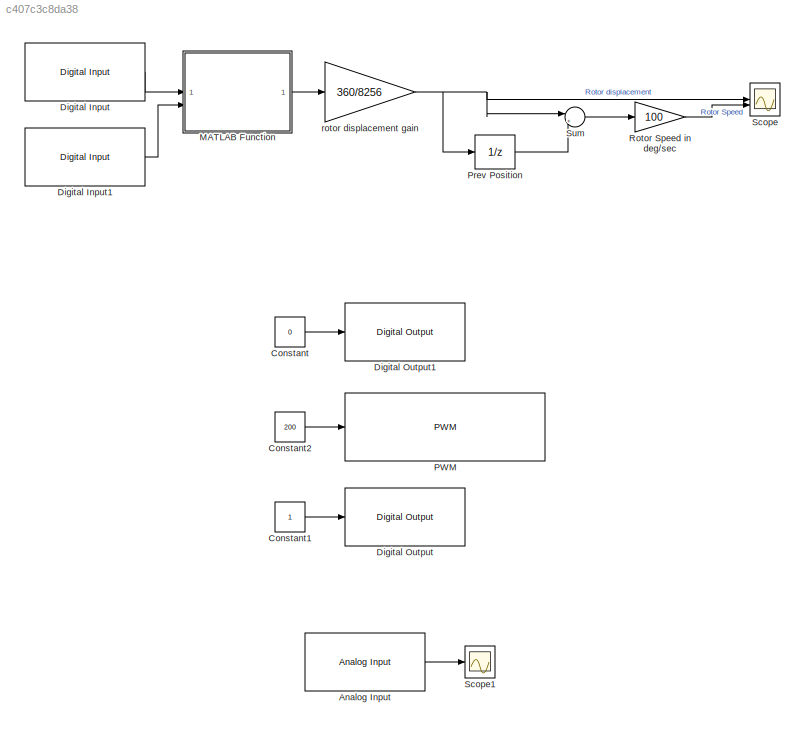
MODEL slx_c407c3c8da38
KIND model
CONFIG AbsTol = auto
CONFIG EnableMultiTasking = on
CONFIG FixedStep = auto
CONFIG MaxStep = auto
CONFIG MinStep = auto
CONFIG RelTol = 1e-3
CONFIG SampleTimeConstraint = Unconstrained
CONFIG SolverName = ode45
CONFIG StartTime = 0.0
CONFIG StopTime = 10.0
BLOCK [Reference] Analog Input  REF=arduinolib/Analog Input
  SourceBlock = arduinolib/Analog Input
  SourceType = Arduino Analog Input
BLOCK [Constant] Constant
  Commented = on
  Value = 0
BLOCK [Constant] Constant1
  Commented = on
BLOCK [Constant] Constant2
  Commented = on
  Value = 200
BLOCK [Reference] Digital Input  REF=arduinolib/Digital Input
  Commented = on
  SourceBlock = arduinolib/Digital Input
  SourceType = Arduino Digital Input
BLOCK [Reference] Digital Input1  REF=arduinolib/Digital Input
  Commented = on
  SourceBlock = arduinolib/Digital Input
  SourceType = Arduino Digital Input
BLOCK [Reference] Digital Output  REF=arduinolib/Digital Output
  Commented = on
  SourceBlock = arduinolib/Digital Output
  SourceType = Arduino Digital Output
BLOCK [Reference] Digital Output1  REF=arduinolib/Digital Output
  Commented = on
  SourceBlock = arduinolib/Digital Output
  SourceType = Arduino Digital Output
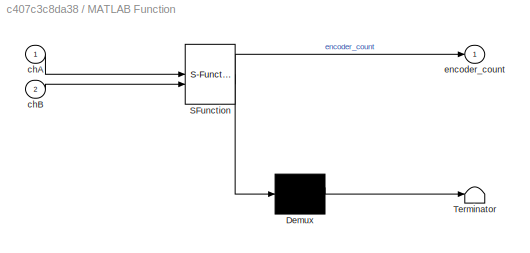
BLOCK [SubSystem] MATLAB Function
  Commented = on
  ErrorFcn = Stateflow.Translate.translate
  PermitHierarchicalResolution = ExplicitOnly
  SFBlockType = MATLAB Function
  TreatAsAtomicUnit = on
BLOCK [Demux] MATLAB Function/ Demux 
  Outputs = 1
BLOCK [S-Function] MATLAB Function/ SFunction 
  EnableBusSupport = on
  FunctionName = sf_sfun
  PortCounts = [2 2]
  SFcnIsStateOwnerBlock = off
  SFunctionDeploymentMode = off
  Tag = Stateflow S-Function 1
BLOCK [Terminator] MATLAB Function/ Terminator 
BLOCK [Inport] MATLAB Function/chA
BLOCK [Inport] MATLAB Function/chB
  Port = 2
BLOCK [Outport] MATLAB Function/encoder_count
BLOCK [Reference] PWM  REF=arduinolib/PWM
  Commented = on
  SourceBlock = arduinolib/PWM
  SourceType = Arduino PWM
BLOCK [UnitDelay] Prev Position
  Commented = on
  HasFrameUpgradeWarning = on
  SampleTime = -1
BLOCK [Gain] Rotor Speed in deg//sec
  Commented = on
  Gain = 100
BLOCK [Scope] Scope
  Commented = on
  Floating = off
  NumInputPorts = 2
  ScopeSpecificationString = Simulink.scopes.TimeScopeBlockCfg('CurrentConfiguration', extmgr.ConfigurationSet(extmgr.Configuration('Core','General UI',true,'FigureColor',[1 1 1]),extmgr.Configuration('Core','Source UI',true),extmgr.Configuration('Sources','WiredSimulink',true),extmgr.Configuration('Visuals','Time Domain',true,'SerializedDisplays',{struct('MinYLimReal','-2.3492','MaxYLimReal','1.08467','YLabelReal','','MinYLi...<+2239ch>
BLOCK [Scope] Scope1
  Floating = off
  NumInputPorts = 1
  ScopeSpecificationString = Simulink.scopes.TimeScopeBlockCfg('CurrentConfiguration', extmgr.ConfigurationSet(extmgr.Configuration('Core','General UI',true,'FigureColor',[1 1 1]),extmgr.Configuration('Core','Source UI',true),extmgr.Configuration('Sources','WiredSimulink',true,'DataLoggingVariableName','ScopeData1'),extmgr.Configuration('Visuals','Time Domain',true,'SerializedDisplays',{struct('MinYLimReal','-127.75','MaxYLim...<+1567ch>
BLOCK [Sum] Sum
  Commented = on
  Inputs = |+-
BLOCK [Gain] rotor displacement gain
  Commented = on
  Gain = 360/8256
LINE Analog Input:1 -> Scope1:1
LINE Constant1:1 -> Digital Output:1
LINE Constant2:1 -> PWM:1
LINE Constant:1 -> Digital Output1:1
LINE Digital Input1:1 -> MATLAB Function:2
LINE Digital Input:1 -> MATLAB Function:1
LINE MATLAB Function:1 -> rotor displacement gain:1
LINE Prev Position:1 -> Sum:2
LINE Rotor Speed in deg//sec:1 -> Scope:2
LINE Sum:1 -> Rotor Speed in deg//sec:1
NET rotor displacement gain:1 -> Prev Position:1, Scope:1, Sum:1
note: NET lines group one-source signal fan-out (src -> all destinations, sorted); 1:1 wires keep LINE
CHART MATLAB Function states=1 transitions=1
  STATE_LABEL 'eML_blk_kernel()'
  STATE_LABEL 'SCRIPT:\nfunction encoder_count = fcn(chA, chB)\n\npersistent count last_state;\n\nif isempty(count)\n    count = 0;\n    last_state = [0, 0];\nend\n\ncurrent_state = double([chA, chB]);\n\n% This lookup table determines the change in count (+1, -1, or 0)\n% based on the transition from the last state to the current state.\n% Rows are the last state [A,B]: 00, 01, 11, 10\n% Columns are the current state [A,B]: 0...<+619ch>'
CHART  states=0 transitions=0
